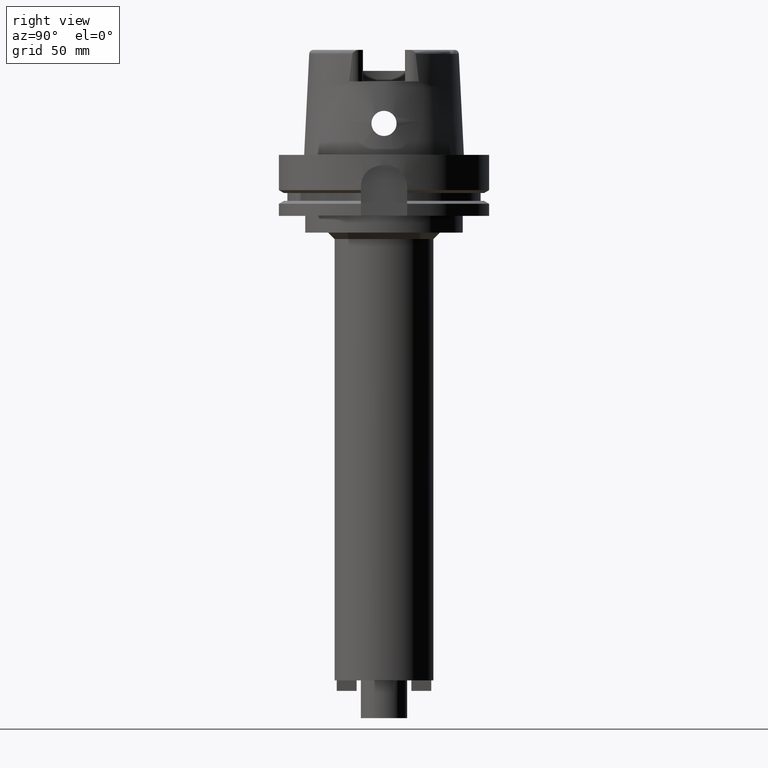
[diagram: clean part render]
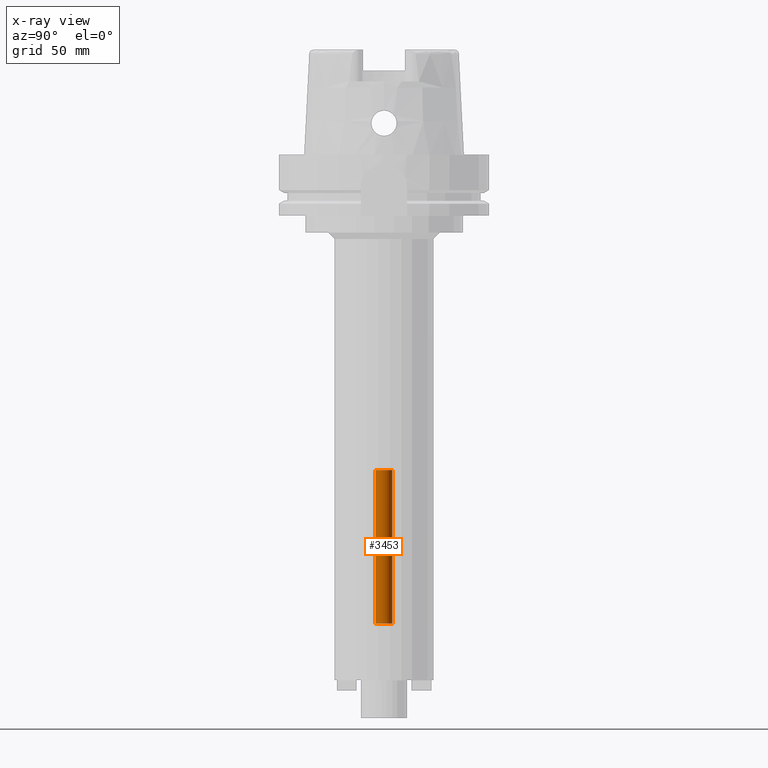
[diagram: x-ray — body ghosted, one internal face saturated and labeled with its STEP entity id]
A machine part, right view, then the same camera in x-ray: the body is ghosted and one INTERNAL B-rep face — a face not visible from any outside direction — is saturated and labeled: STEP entity #3453.
In plain terms, the highlighted cylindrical surface (edge-blend (fillet) strip) has radius 4 mm, axis along (0, 0, 1).
Its self-contained STEP definition (entity closure, byte-faithful):
#927=CARTESIAN_POINT('',(0.E0,0.E0,-1.5E2));
#928=DIRECTION('',(0.E0,0.E0,1.E0));
#929=DIRECTION('',(0.E0,-1.E0,0.E0));
#930=AXIS2_PLACEMENT_3D('',#927,#928,#929);
#943=DIRECTION('',(0.E0,0.E0,1.E0));
#944=VECTOR('',#943,7.3E1);
#945=CARTESIAN_POINT('',(0.E0,4.E0,-2.23E2));
#946=LINE('',#945,#944);
#950=DIRECTION('',(0.E0,0.E0,1.E0));
#951=VECTOR('',#950,7.3E1);
#952=CARTESIAN_POINT('',(0.E0,-4.E0,-2.23E2));
#953=LINE('',#952,#951);
#981=CARTESIAN_POINT('',(0.E0,0.E0,-2.23E2));
#982=DIRECTION('',(0.E0,0.E0,-1.E0));
#983=DIRECTION('',(0.E0,1.E0,0.E0));
#984=AXIS2_PLACEMENT_3D('',#981,#982,#983);
#2568=CARTESIAN_POINT('',(0.E0,-4.E0,-1.5E2));
#2569=CARTESIAN_POINT('',(0.E0,4.E0,-1.5E2));
#2570=VERTEX_POINT('',#2568);
#2571=VERTEX_POINT('',#2569);
#2572=CARTESIAN_POINT('',(0.E0,4.E0,-2.23E2));
#2573=VERTEX_POINT('',#2572);
#2574=CARTESIAN_POINT('',(0.E0,-4.E0,-2.23E2));
#2575=VERTEX_POINT('',#2574);
#3439=CARTESIAN_POINT('',(0.E0,0.E0,-2.839E2));
#3440=DIRECTION('',(0.E0,0.E0,1.E0));
#3441=DIRECTION('',(0.E0,1.E0,0.E0));
#3442=AXIS2_PLACEMENT_3D('',#3439,#3440,#3441);
#3443=CYLINDRICAL_SURFACE('',#3442,4.E0);
#3445=ORIENTED_EDGE('',*,*,#3444,.T.);
#3446=ORIENTED_EDGE('',*,*,#3432,.F.);
#3448=ORIENTED_EDGE('',*,*,#3447,.F.);
#3450=ORIENTED_EDGE('',*,*,#3449,.F.);
#3451=EDGE_LOOP('',(#3445,#3446,#3448,#3450));
#3452=FACE_OUTER_BOUND('',#3451,.F.);
#931=CIRCLE('',#930,4.E0);
#985=CIRCLE('',#984,4.E0);
#3432=EDGE_CURVE('',#2570,#2571,#931,.T.);
#3444=EDGE_CURVE('',#2573,#2571,#946,.T.);
#3447=EDGE_CURVE('',#2575,#2570,#953,.T.);
#3449=EDGE_CURVE('',#2573,#2575,#985,.T.);
#3453=ADVANCED_FACE('',(#3452),#3443,.F.);